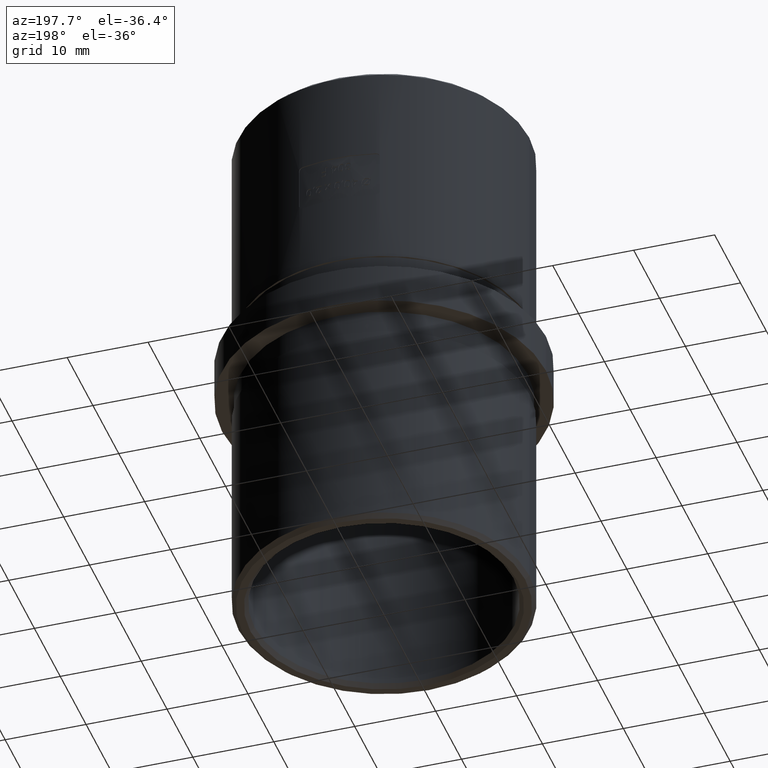
[diagram: clean part render]
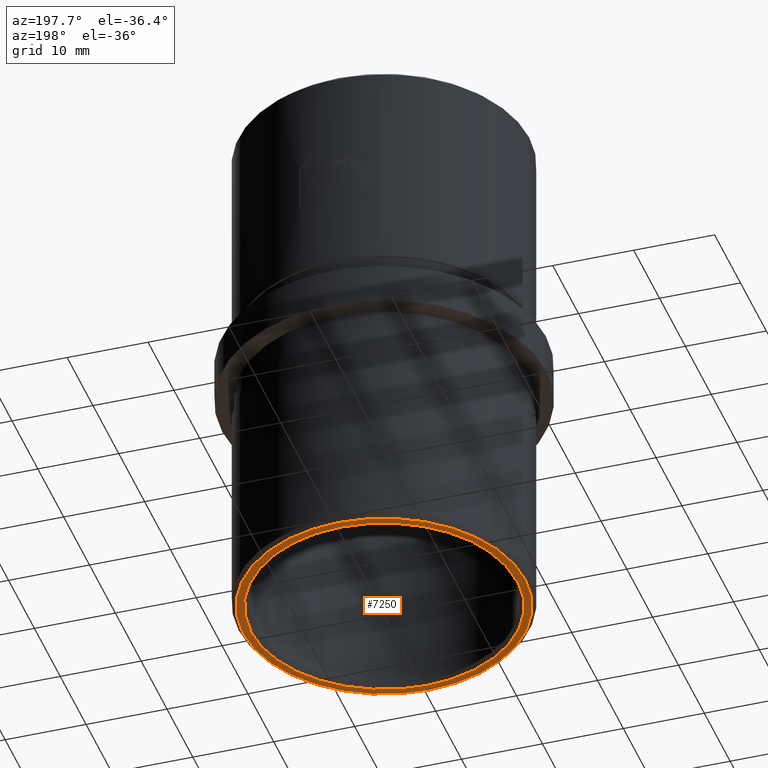
[diagram: same view with one face highlighted and labeled with its STEP entity id]
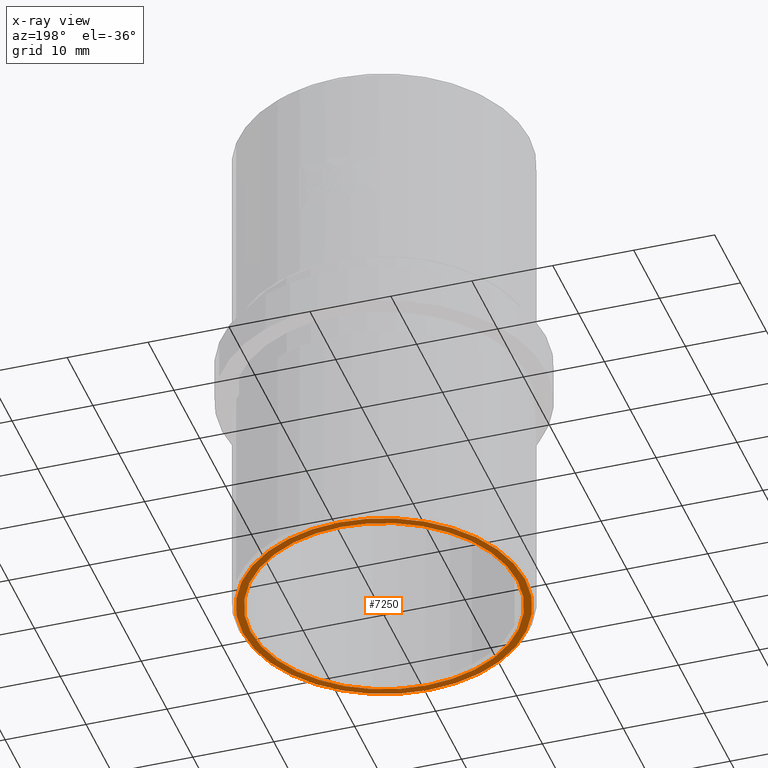
[diagram: x-ray of the same camera — body ghosted, the highlighted face saturated]
A machine part, auxiliary view. The second image highlights one B-rep face of the part: STEP entity #7250.
The next image is the same camera in x-ray: the body ghosted, the highlighted face saturated — about 0% of this face is hidden behind the body in this view.
In plain terms, the highlighted planar face has unit normal (0, 0, -1).
Its self-contained STEP definition (entity closure, byte-faithful):
#34 = EDGE_CURVE ( 'NONE', #499, #15135, #1639, .T. ) ;
#122 = ORIENTED_EDGE ( 'NONE', *, *, #5103, .T. ) ;
#253 = CARTESIAN_POINT ( 'NONE',  ( 0.0000000000000000000, 0.0000000000000000000, -32.50000000000000000 ) ) ;
#282 = CARTESIAN_POINT ( 'NONE',  ( 0.0000000000000000000, 0.0000000000000000000, -32.50000000000000000 ) ) ;
#499 = VERTEX_POINT ( 'NONE', #2207 ) ;
#1033 = CARTESIAN_POINT ( 'NONE',  ( -16.49999999999999300, 0.0000000000000000000, -32.50000000000000000 ) ) ;
#1071 = VERTEX_POINT ( 'NONE', #15803 ) ;
#1639 = CIRCLE ( 'NONE', #2044, 16.49999999999999300 ) ;
#2044 = AXIS2_PLACEMENT_3D ( 'NONE', #6381, #9870, #21722 ) ;
#2207 = CARTESIAN_POINT ( 'NONE',  ( 16.49999999999999300, 2.020667218593132300E-015, -32.50000000000000000 ) ) ;
#3133 = AXIS2_PLACEMENT_3D ( 'NONE', #7919, #11498, #13036 ) ;
#3843 = DIRECTION ( 'NONE',  ( -0.0000000000000000000, -0.0000000000000000000, 1.000000000000000000 ) ) ;
#4025 = VERTEX_POINT ( 'NONE', #6066 ) ;
#4740 = AXIS2_PLACEMENT_3D ( 'NONE', #282, #8524, #21003 ) ;
#5103 = EDGE_CURVE ( 'NONE', #15135, #499, #9466, .T. ) ;
#5171 = FACE_OUTER_BOUND ( 'NONE', #15201, .T. ) ;
#5706 = DIRECTION ( 'NONE',  ( -1.000000000000000000, 0.0000000000000000000, 0.0000000000000000000 ) ) ;
#6066 = CARTESIAN_POINT ( 'NONE',  ( -17.45000000000000600, 2.167624834490815800E-015, -32.50000000000000000 ) ) ;
#6381 = CARTESIAN_POINT ( 'NONE',  ( 0.0000000000000000000, 0.0000000000000000000, -32.50000000000000000 ) ) ;
#7250 = ADVANCED_FACE ( 'NONE', ( #5171, #10759 ), #8183, .T. ) ;
#7919 = CARTESIAN_POINT ( 'NONE',  ( 0.0000000000000000000, 0.0000000000000000000, -32.50000000000000000 ) ) ;
#7946 = AXIS2_PLACEMENT_3D ( 'NONE', #8918, #3843, #5706 ) ;
#8183 = PLANE ( 'NONE',  #3133 ) ;
#8524 = DIRECTION ( 'NONE',  ( 0.0000000000000000000, 0.0000000000000000000, -1.000000000000000000 ) ) ;
#8918 = CARTESIAN_POINT ( 'NONE',  ( 0.0000000000000000000, 0.0000000000000000000, -32.50000000000000000 ) ) ;
#9466 = CIRCLE ( 'NONE', #7946, 16.49999999999999300 ) ;
#9870 = DIRECTION ( 'NONE',  ( -0.0000000000000000000, -0.0000000000000000000, 1.000000000000000000 ) ) ;
#10042 = EDGE_CURVE ( 'NONE', #1071, #4025, #21608, .T. ) ;
#10632 = DIRECTION ( 'NONE',  ( 0.0000000000000000000, 0.0000000000000000000, -1.000000000000000000 ) ) ;
#10759 = FACE_BOUND ( 'NONE', #11351, .T. ) ;
#11351 = EDGE_LOOP ( 'NONE', ( #122, #11874 ) ) ;
#11498 = DIRECTION ( 'NONE',  ( 0.0000000000000000000, 0.0000000000000000000, -1.000000000000000000 ) ) ;
#11874 = ORIENTED_EDGE ( 'NONE', *, *, #34, .T. ) ;
#13036 = DIRECTION ( 'NONE',  ( 1.000000000000000000, 0.0000000000000000000, 0.0000000000000000000 ) ) ;
#13401 = ORIENTED_EDGE ( 'NONE', *, *, #10042, .T. ) ;
#15135 = VERTEX_POINT ( 'NONE', #1033 ) ;
#15201 = EDGE_LOOP ( 'NONE', ( #13401, #19760 ) ) ;
#15680 = DIRECTION ( 'NONE',  ( -1.000000000000000000, 0.0000000000000000000, 0.0000000000000000000 ) ) ;
#15803 = CARTESIAN_POINT ( 'NONE',  ( 17.45000000000000600, 0.0000000000000000000, -32.50000000000000000 ) ) ;
#16197 = CIRCLE ( 'NONE', #21031, 17.45000000000000600 ) ;
#19760 = ORIENTED_EDGE ( 'NONE', *, *, #21748, .T. ) ;
#21003 = DIRECTION ( 'NONE',  ( -1.000000000000000000, 0.0000000000000000000, 0.0000000000000000000 ) ) ;
#21031 = AXIS2_PLACEMENT_3D ( 'NONE', #253, #10632, #15680 ) ;
#21608 = CIRCLE ( 'NONE', #4740, 17.45000000000000600 ) ;
#21722 = DIRECTION ( 'NONE',  ( -1.000000000000000000, 0.0000000000000000000, 0.0000000000000000000 ) ) ;
#21748 = EDGE_CURVE ( 'NONE', #4025, #1071, #16197, .T. ) ;